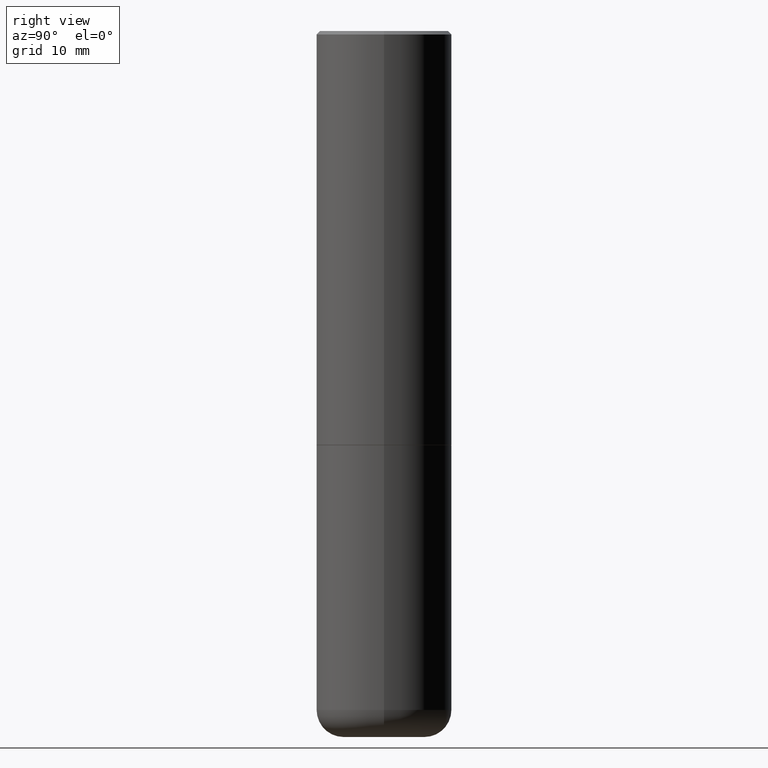
[diagram: clean part render]
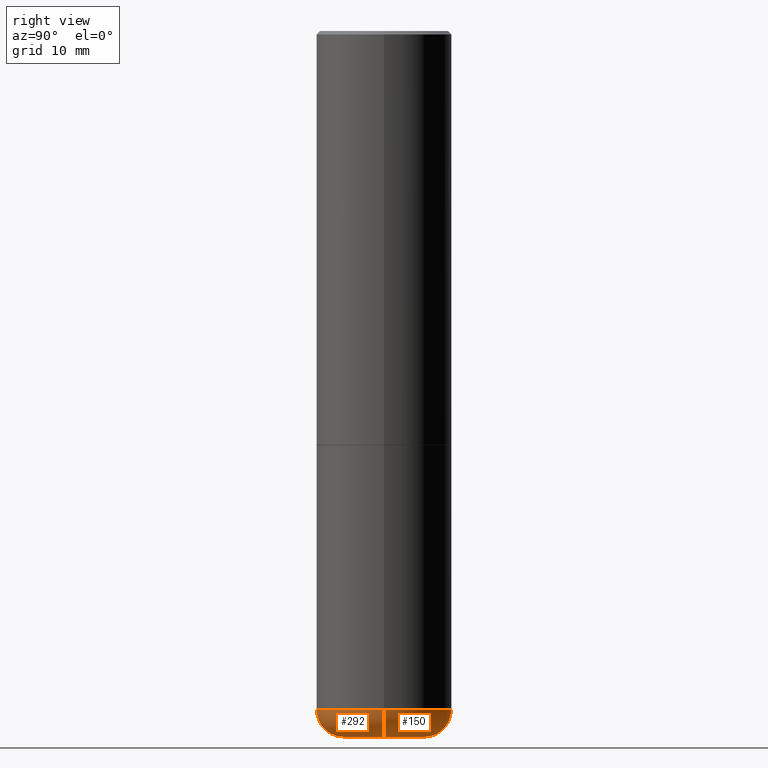
[diagram: same view with one multi-face feature highlighted, each face labeled with its STEP entity id]
A machine part, right view. The highlighted faces form ONE feature: a constant-radius fillet chain: 2 tangent blend faces with common blend radius 4.0005 mm. The faces share edges in the B-rep.
Their STEP definitions:
[1] entity #292 (Torus):
#30 = DIRECTION ( 'NONE',  ( 1.000000000000000000, -6.982962677686262766E-15, 0.000000000000000000 ) ) ;
#37 = DIRECTION ( 'NONE',  ( -2.445468806185136597E-29, 3.491481338843145583E-15, 1.000000000000000000 ) ) ;
#39 = CARTESIAN_POINT ( 'NONE',  ( 9.627810689950883669E-29, -1.374596203102546341E-14, -3.937000000000000277 ) ) ;
#46 = CARTESIAN_POINT ( 'NONE',  ( 9.627810689950883669E-29, -1.374596203102546341E-14, -3.937000000000000277 ) ) ;
#54 = CARTESIAN_POINT ( 'NONE',  ( 0.2362000000000000210, -1.539533781549495994E-14, -3.937000000000000277 ) ) ;
#55 = EDGE_LOOP ( 'NONE', ( #382, #274, #214, #276 ) ) ;
#58 = VERTEX_POINT ( 'NONE', #107 ) ;
#73 = EDGE_CURVE ( 'NONE', #248, #311, #141, .T. ) ;
#81 = DIRECTION ( 'NONE',  ( -1.000000000000000000, 7.105427357601006592E-15, 0.000000000000000000 ) ) ;
#97 = CARTESIAN_POINT ( 'NONE',  ( 0.2362000000000000766, -1.594524612636275486E-14, -4.094500000000000028 ) ) ;
#107 = CARTESIAN_POINT ( 'NONE',  ( -0.2362000000000000766, -1.178306184018292647E-14, -4.094500000000000028 ) ) ;
#109 = DIRECTION ( 'NONE',  ( -2.445468806185136597E-29, 3.491481338843145583E-15, 1.000000000000000000 ) ) ;
#117 = CARTESIAN_POINT ( 'NONE',  ( -0.3936999999999999389, -1.094855528033794942E-14, -3.937000000000000277 ) ) ;
#141 = CIRCLE ( 'NONE', #157, 0.3937000000000000499 ) ;
#142 = AXIS2_PLACEMENT_3D ( 'NONE', #54, #405, #303 ) ;
#148 = AXIS2_PLACEMENT_3D ( 'NONE', #387, #279, #30 ) ;
#157 = AXIS2_PLACEMENT_3D ( 'NONE', #46, #109, #334 ) ;
#158 = EDGE_CURVE ( 'NONE', #58, #248, #332, .T. ) ;
#165 = CARTESIAN_POINT ( 'NONE',  ( 0.3936999999999999389, -1.649515443723054663E-14, -3.937000000000000277 ) ) ;
#186 = CIRCLE ( 'NONE', #142, 0.1574999999999997791 ) ;
#197 = FACE_OUTER_BOUND ( 'NONE', #55, .T. ) ;
#207 = EDGE_CURVE ( 'NONE', #58, #301, #273, .T. ) ;
#211 = DIRECTION ( 'NONE',  ( 7.105427357601001859E-15, 1.000000000000000000, -3.491481338843145583E-15 ) ) ;
#214 = ORIENTED_EDGE ( 'NONE', *, *, #346, .T. ) ;
#248 = VERTEX_POINT ( 'NONE', #117 ) ;
#256 = DIRECTION ( 'NONE',  ( 1.000000000000000000, -6.982962677686266711E-15, 4.883557194083112340E-29 ) ) ;
#258 = AXIS2_PLACEMENT_3D ( 'NONE', #39, #37, #256 ) ;
#273 = CIRCLE ( 'NONE', #148, 0.2362000000000000766 ) ;
#274 = ORIENTED_EDGE ( 'NONE', *, *, #207, .T. ) ;
#276 = ORIENTED_EDGE ( 'NONE', *, *, #73, .F. ) ;
#279 = DIRECTION ( 'NONE',  ( -2.445468806185136597E-29, 3.491481338843145583E-15, 1.000000000000000000 ) ) ;
#292 = ADVANCED_FACE ( 'NONE', ( #197 ), #328, .T. ) ;
#301 = VERTEX_POINT ( 'NONE', #97 ) ;
#303 = DIRECTION ( 'NONE',  ( 1.000000000000000000, -6.982962677686272233E-15, 0.000000000000000000 ) ) ;
#311 = VERTEX_POINT ( 'NONE', #165 ) ;
#328 = TOROIDAL_SURFACE ( 'NONE', #258, 0.2362000000000000210, 0.1574999999999998346 ) ;
#332 = CIRCLE ( 'NONE', #376, 0.1574999999999997791 ) ;
#334 = DIRECTION ( 'NONE',  ( 1.000000000000000000, -6.982962677686267499E-15, 0.000000000000000000 ) ) ;
#337 = CARTESIAN_POINT ( 'NONE',  ( -0.2362000000000000210, -1.206766008916010702E-14, -3.937000000000000277 ) ) ;
#346 = EDGE_CURVE ( 'NONE', #301, #311, #186, .T. ) ;
#376 = AXIS2_PLACEMENT_3D ( 'NONE', #337, #211, #81 ) ;
#382 = ORIENTED_EDGE ( 'NONE', *, *, #158, .F. ) ;
#387 = CARTESIAN_POINT ( 'NONE',  ( 1.001297202692504102E-28, -1.429587034189325834E-14, -4.094500000000000028 ) ) ;
#405 = DIRECTION ( 'NONE',  ( -6.982962677686266711E-15, -1.000000000000000000, 3.491481338843145583E-15 ) ) ;
[2] entity #150 (Torus):
#15 = AXIS2_PLACEMENT_3D ( 'NONE', #347, #60, #380 ) ;
#16 = ORIENTED_EDGE ( 'NONE', *, *, #265, .F. ) ;
#54 = CARTESIAN_POINT ( 'NONE',  ( 0.2362000000000000210, -1.539533781549495994E-14, -3.937000000000000277 ) ) ;
#58 = VERTEX_POINT ( 'NONE', #107 ) ;
#60 = DIRECTION ( 'NONE',  ( -2.445468806185136597E-29, 3.491481338843145583E-15, 1.000000000000000000 ) ) ;
#66 = ORIENTED_EDGE ( 'NONE', *, *, #346, .F. ) ;
#79 = FACE_OUTER_BOUND ( 'NONE', #246, .T. ) ;
#80 = ORIENTED_EDGE ( 'NONE', *, *, #243, .T. ) ;
#81 = DIRECTION ( 'NONE',  ( -1.000000000000000000, 7.105427357601006592E-15, 0.000000000000000000 ) ) ;
#97 = CARTESIAN_POINT ( 'NONE',  ( 0.2362000000000000766, -1.594524612636275486E-14, -4.094500000000000028 ) ) ;
#107 = CARTESIAN_POINT ( 'NONE',  ( -0.2362000000000000766, -1.178306184018292647E-14, -4.094500000000000028 ) ) ;
#111 = CARTESIAN_POINT ( 'NONE',  ( 9.627810689950883669E-29, -1.374596203102546341E-14, -3.937000000000000277 ) ) ;
#117 = CARTESIAN_POINT ( 'NONE',  ( -0.3936999999999999389, -1.094855528033794942E-14, -3.937000000000000277 ) ) ;
#120 = CARTESIAN_POINT ( 'NONE',  ( 1.001297202692504102E-28, -1.429587034189325834E-14, -4.094500000000000028 ) ) ;
#142 = AXIS2_PLACEMENT_3D ( 'NONE', #54, #405, #303 ) ;
#150 = ADVANCED_FACE ( 'NONE', ( #79 ), #338, .T. ) ;
#151 = ORIENTED_EDGE ( 'NONE', *, *, #158, .T. ) ;
#158 = EDGE_CURVE ( 'NONE', #58, #248, #332, .T. ) ;
#165 = CARTESIAN_POINT ( 'NONE',  ( 0.3936999999999999389, -1.649515443723054663E-14, -3.937000000000000277 ) ) ;
#186 = CIRCLE ( 'NONE', #142, 0.1574999999999997791 ) ;
#194 = AXIS2_PLACEMENT_3D ( 'NONE', #120, #302, #407 ) ;
#202 = DIRECTION ( 'NONE',  ( 1.000000000000000000, -6.982962677686266711E-15, 4.883557194083112340E-29 ) ) ;
#209 = AXIS2_PLACEMENT_3D ( 'NONE', #111, #397, #202 ) ;
#211 = DIRECTION ( 'NONE',  ( 7.105427357601001859E-15, 1.000000000000000000, -3.491481338843145583E-15 ) ) ;
#243 = EDGE_CURVE ( 'NONE', #301, #58, #394, .T. ) ;
#246 = EDGE_LOOP ( 'NONE', ( #80, #151, #16, #66 ) ) ;
#248 = VERTEX_POINT ( 'NONE', #117 ) ;
#265 = EDGE_CURVE ( 'NONE', #311, #248, #288, .T. ) ;
#288 = CIRCLE ( 'NONE', #15, 0.3937000000000000499 ) ;
#301 = VERTEX_POINT ( 'NONE', #97 ) ;
#302 = DIRECTION ( 'NONE',  ( -2.445468806185136597E-29, 3.491481338843145583E-15, 1.000000000000000000 ) ) ;
#303 = DIRECTION ( 'NONE',  ( 1.000000000000000000, -6.982962677686272233E-15, 0.000000000000000000 ) ) ;
#311 = VERTEX_POINT ( 'NONE', #165 ) ;
#332 = CIRCLE ( 'NONE', #376, 0.1574999999999997791 ) ;
#337 = CARTESIAN_POINT ( 'NONE',  ( -0.2362000000000000210, -1.206766008916010702E-14, -3.937000000000000277 ) ) ;
#338 = TOROIDAL_SURFACE ( 'NONE', #209, 0.2362000000000000210, 0.1574999999999998346 ) ;
#346 = EDGE_CURVE ( 'NONE', #301, #311, #186, .T. ) ;
#347 = CARTESIAN_POINT ( 'NONE',  ( 9.627810689950883669E-29, -1.374596203102546341E-14, -3.937000000000000277 ) ) ;
#376 = AXIS2_PLACEMENT_3D ( 'NONE', #337, #211, #81 ) ;
#380 = DIRECTION ( 'NONE',  ( 1.000000000000000000, -6.982962677686267499E-15, 0.000000000000000000 ) ) ;
#394 = CIRCLE ( 'NONE', #194, 0.2362000000000000766 ) ;
#397 = DIRECTION ( 'NONE',  ( -2.445468806185136597E-29, 3.491481338843145583E-15, 1.000000000000000000 ) ) ;
#405 = DIRECTION ( 'NONE',  ( -6.982962677686266711E-15, -1.000000000000000000, 3.491481338843145583E-15 ) ) ;
#407 = DIRECTION ( 'NONE',  ( 1.000000000000000000, -6.982962677686262766E-15, 0.000000000000000000 ) ) ;